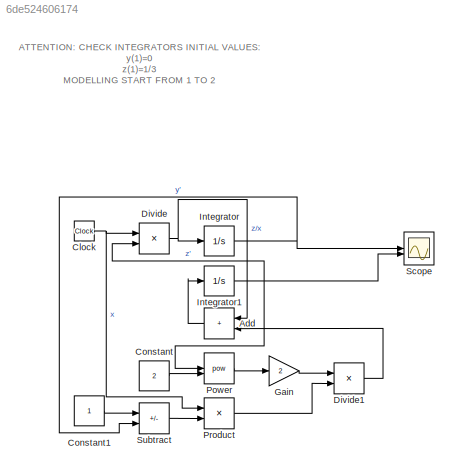
MODEL slx_6de524606174
KIND model
CONFIG AbsTol = auto
CONFIG EnableMultiTasking = off
CONFIG FixedStep = auto
CONFIG MaxStep = auto
CONFIG MinStep = auto
CONFIG RelTol = 1e-3
CONFIG SampleTimeConstraint = Unconstrained
CONFIG SolverName = ode45
CONFIG StartTime = 1
CONFIG StopTime = 2
BLOCK [Sum] Add
  IconShape = rectangular
  NameLocation = top
BLOCK [Clock] Clock
BLOCK [Constant] Constant
  Value = 2
BLOCK [Constant] Constant1
BLOCK [Product] Divide
  Inputs = /*
BLOCK [Product] Divide1
  Inputs = */
BLOCK [Gain] Gain
  Gain = 2
BLOCK [Integrator] Integrator
BLOCK [Integrator] Integrator1
  InitialCondition = 1/3
BLOCK [Math] Power
  Operator = pow
BLOCK [Product] Product
BLOCK [Scope] Scope
  Floating = off
  NumInputPorts = 2
  ScopeSpecificationString = Simulink.scopes.TimeScopeBlockCfg('CurrentConfiguration', extmgr.ConfigurationSet(extmgr.Configuration('Core','General UI',true),extmgr.Configuration('Core','Source UI',true),extmgr.Configuration('Sources','WiredSimulink',true),extmgr.Configuration('Visuals','Time Domain',true,'SerializedDisplays',{struct('MinYLimReal','-0.03125','MaxYLimReal','0.28125','YLabelReal','','MinYLimMag','0.00000','MaxY...<+1958ch>
BLOCK [Sum] Subtract
  IconShape = rectangular
  Inputs = -+
ANNOTATION (root): ATTENTION: CHECK INTEGRATORS INITIAL VALUES: y(1)=0 z(1)=1/3 MODELLING START FROM 1 TO 2
LINE Add:1 -> Integrator1:1
NET Clock:1 -> Divide:1, Product:1
LINE Constant1:1 -> Subtract:1
LINE Constant:1 -> Power:2
LINE Divide1:1 -> Add:2
NET Divide:1 -> Add:1, Integrator:1
LINE Gain:1 -> Divide1:1
NET Integrator1:1 -> Divide:2, Power:1, Scope:2
NET Integrator:1 -> Scope:1, Subtract:2
LINE Power:1 -> Gain:1
LINE Product:1 -> Divide1:2
LINE Subtract:1 -> Product:2
note: NET lines group one-source signal fan-out (src -> all destinations, sorted); 1:1 wires keep LINE
